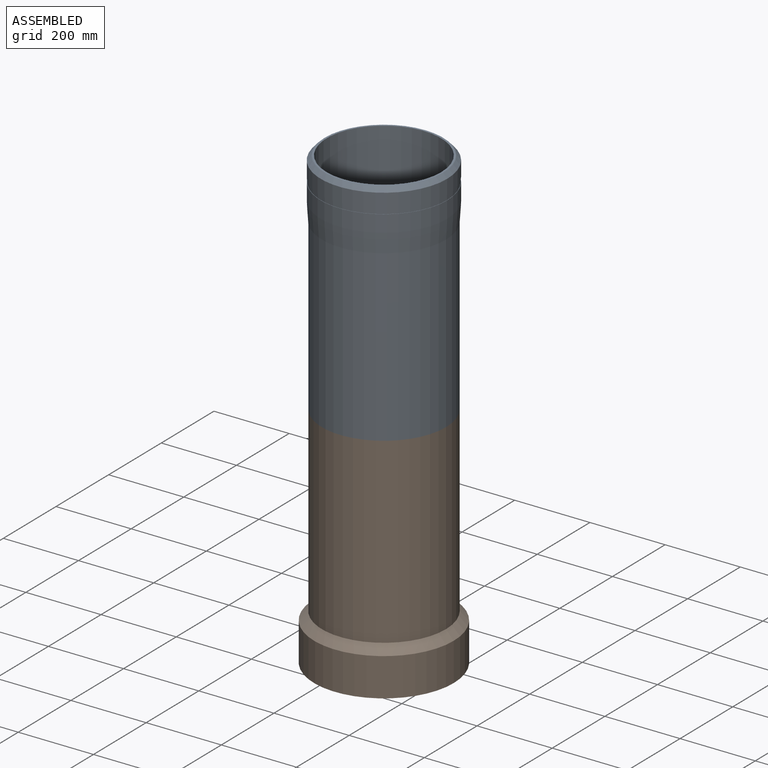
[diagram: assembled view]
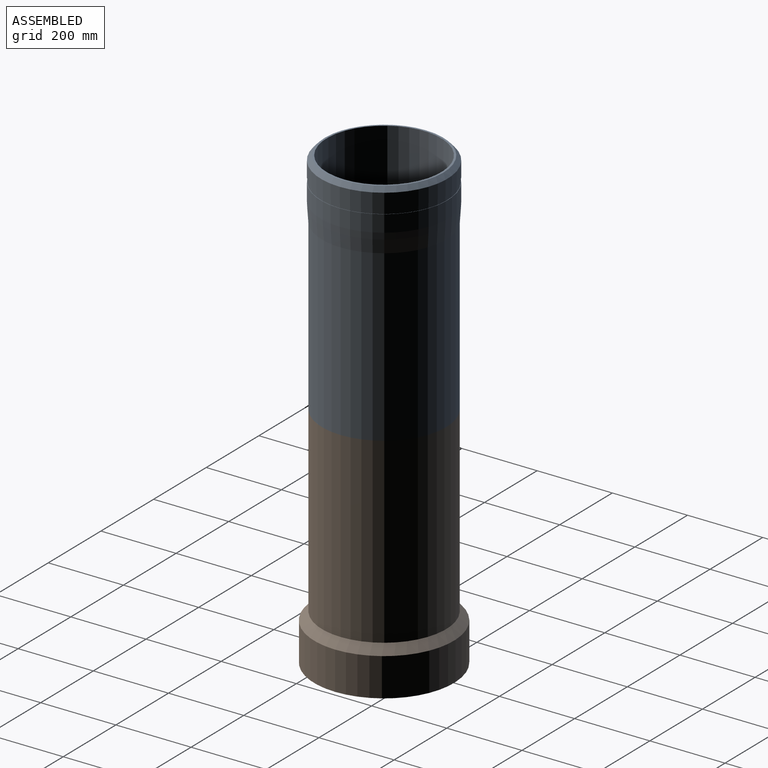
[diagram: assembled view, second angle]
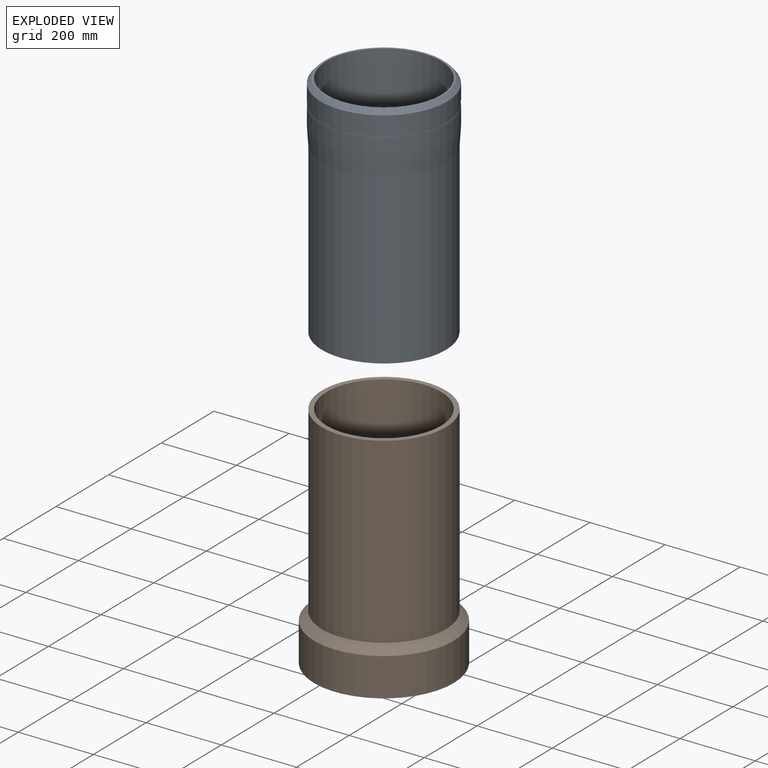
[diagram: exploded view]
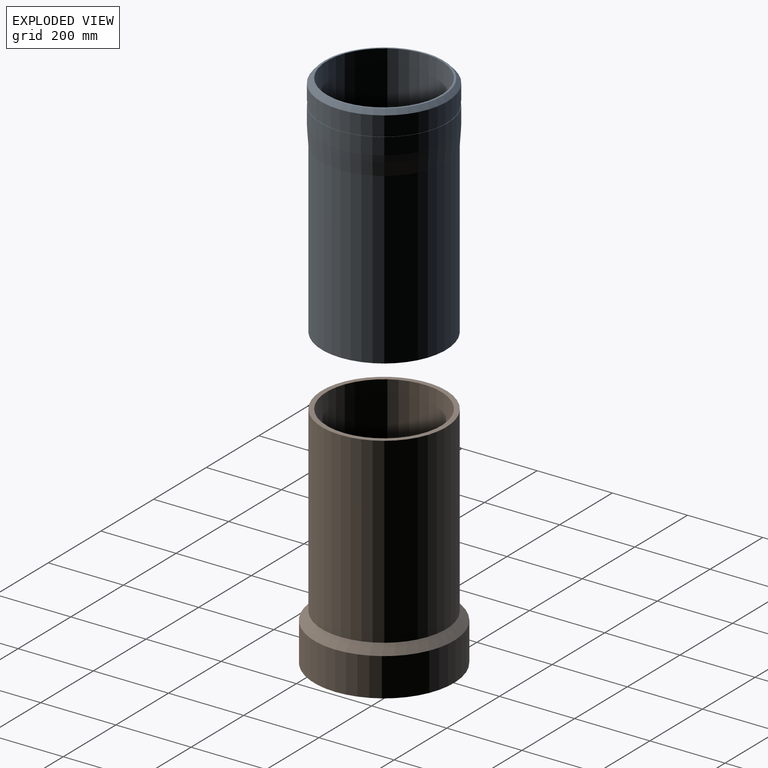
[diagram: exploded view, second angle]
ASSEMBLY  parts=2 mates=2
PART A: 11 faces, bbox 336.6x336.6x609.6 mm
  f0: cylinder r=152.4mm len=609.6mm, axis (0,0,1), area 583727mm2, adj f1,f10
  f1: plane 314.96x314.96mm, normal (0,0,1), area 4945.5mm2, adj f0,f2
  f2: cone r=157.48mm half-angle=42.5deg, axis (0,0,-1), area 16349.1mm2, adj f1,f3
  f3: cylinder r=168.28mm len=336.55mm, axis (0,0,1), area 41259.8mm2, adj f2,f4
  f4: plane 336.55x336.55mm, normal (0,0,-1), area 837.3mm2, adj f3,f5
  f5: cylinder r=167.48mm len=334.96mm, axis (0,0,1), area 13364.4mm2, adj f4,f6
  f6: plane 336.55x336.55mm, normal (0,0,1), area 837.3mm2, adj f5,f7
  f7: cylinder r=168.28mm len=336.55mm, axis (0,0,1), area 46997.1mm2, adj f6,f8
  f8: revolved ~336.55x336.55mm, area 53359.4mm2, adj f7,f9
  f9: cylinder r=165.1mm len=450.85mm, axis (0,0,1), area 467691mm2, adj f8,f10
  f10: plane 330.2x330.2mm, normal (0,0,-1), area 12667.7mm2, adj f0,f9
PART B: 12 faces, bbox 371.5x371.5x609.6 mm
  f0: plane 341.31x341.31mm, normal (0,0,1), area 849.1mm2, adj f1,f11
  f1: cylinder r=170.66mm len=341.31mm, axis (0,0,1), area 13617.8mm2, adj f0,f2
  f2: plane 341.31x341.31mm, normal (0,0,-1), area 849.1mm2, adj f1,f3
  f3: cylinder r=169.86mm len=339.73mm, axis (0,0,1), area 40849.9mm2, adj f2,f4
  f4: cone r=169.86mm half-angle=42.5deg, axis (0,0,-1), area 26163.5mm2, adj f3,f5
  f5: cylinder r=152.4mm len=495.13mm, axis (0,0,1), area 474110.7mm2, adj f4,f6
  f6: plane 330.2x330.2mm, normal (0,0,1), area 12667.7mm2, adj f5,f7
  f7: cylinder r=165.1mm len=485.49mm, axis (0,0,1), area 503621.2mm2, adj f6,f8
  f8: cone r=185.74mm half-angle=42.5deg, axis (0,0,-1), area 33662.3mm2, adj f7,f9
  f9: cylinder r=185.74mm len=371.48mm, axis (0,0,1), area 118569.6mm2, adj f8,f10
  f10: plane 371.48x371.48mm, normal (0,0,-1), area 17734.8mm2, adj f9,f11
  f11: cylinder r=169.86mm len=339.73mm, axis (0,0,1), area 47440.5mm2, adj f0,f10
PLACE A t=(0,0,468.17)mm
PLACE B t=(0,0,1687.37)mm
MATE cylindrical B.f1 <-> A.f0  axis (0,0,1) through (152.4,0,-377.83)mm
MATE planar A.f0 <-> B.f1  axis (0,0,-1) through (152.4,0,-135.08)mm
